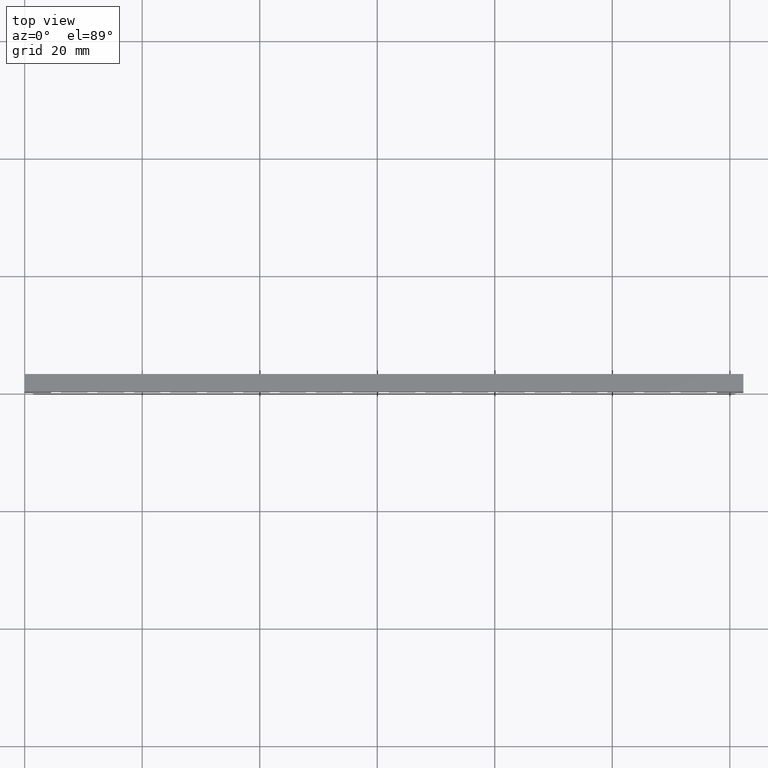
[diagram: clean part render]
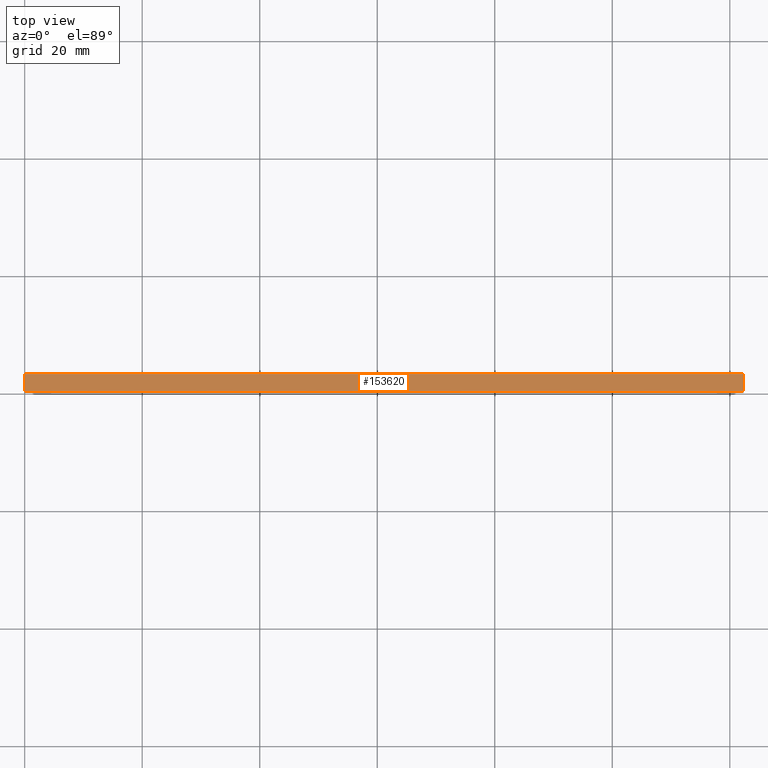
[diagram: same view with one face highlighted and labeled with its STEP entity id]
A machine part, top view. The second image highlights one B-rep face of the part: STEP entity #153620.
In plain terms, the highlighted planar face has unit normal (0, 0, 1).
Its self-contained STEP definition (entity closure, byte-faithful):
#5830=CARTESIAN_POINT('',(2.60716722168539,-9.17499999999835,
135.109999999999));
#5840=VERTEX_POINT('',#5830);
#11980=CARTESIAN_POINT('',(2.60716722168537,-9.17499999999838,
12.8099999999987));
#11990=VERTEX_POINT('',#11980);
#12020=CARTESIAN_POINT('',(2.60716722168537,-9.17499999999838,
26.4950159999974));
#12030=DIRECTION('',(-2.22044604925031E-16,-2.22044604925031E-16,-1.));
#12040=VECTOR('',#12030,1.);
#12050=LINE('',#12020,#12040);
#12060=EDGE_CURVE('',#5840,#11990,#12050,.T.);
#16810=CARTESIAN_POINT('',(5.60716722168538,-9.17499999999838,
12.8099999999987));
#16820=VERTEX_POINT('',#16810);
#16850=CARTESIAN_POINT('',(2.60716722168539,-9.17499999999838,
12.8099999999987));
#16860=DIRECTION('',(-1.,-4.74778387287989E-66,2.22044604925031E-16));
#16870=VECTOR('',#16860,1.);
#16880=LINE('',#16850,#16870);
#16890=EDGE_CURVE('',#16820,#11990,#16880,.T.);
#73420=CARTESIAN_POINT('',(5.60716722168541,-9.17499999999835,
135.109999999999));
#73430=VERTEX_POINT('',#73420);
#73460=CARTESIAN_POINT('',(5.6071672216854,-9.17499999999835,
125.695015999997));
#73470=DIRECTION('',(2.22044604925031E-16,2.22044604925031E-16,1.));
#73480=VECTOR('',#73470,1.);
#73490=LINE('',#73460,#73480);
#73500=EDGE_CURVE('',#16820,#73430,#73490,.T.);
#153320=CARTESIAN_POINT('',(2.60716722168542,-9.17499999999835,
135.109999999999));
#153330=DIRECTION('',(1.,4.74778387287989E-66,-2.22044604925031E-16));
#153340=VECTOR('',#153330,1.);
#153350=LINE('',#153320,#153340);
#153360=EDGE_CURVE('',#5840,#73430,#153350,.T.);
#153510=CARTESIAN_POINT('',(5.60716722168541,-9.17499999999835,
165.409999999999));
#153520=DIRECTION('',(-4.93038065763132E-32,1.,-2.22044604925031E-16));
#153530=DIRECTION('',(-2.22044604925031E-16,-2.22044604925031E-16,-1.));
#153540=AXIS2_PLACEMENT_3D('',#153510,#153520,#153530);
#153550=PLANE('',#153540);
#153560=ORIENTED_EDGE('',*,*,#153360,.T.);
#153570=ORIENTED_EDGE('',*,*,#12060,.F.);
#153580=ORIENTED_EDGE('',*,*,#16890,.T.);
#153590=ORIENTED_EDGE('',*,*,#73500,.F.);
#153600=EDGE_LOOP('',(#153590,#153580,#153570,#153560));
#153610=FACE_OUTER_BOUND('',#153600,.T.);
#153620=ADVANCED_FACE('',(#153610),#153550,.T.);